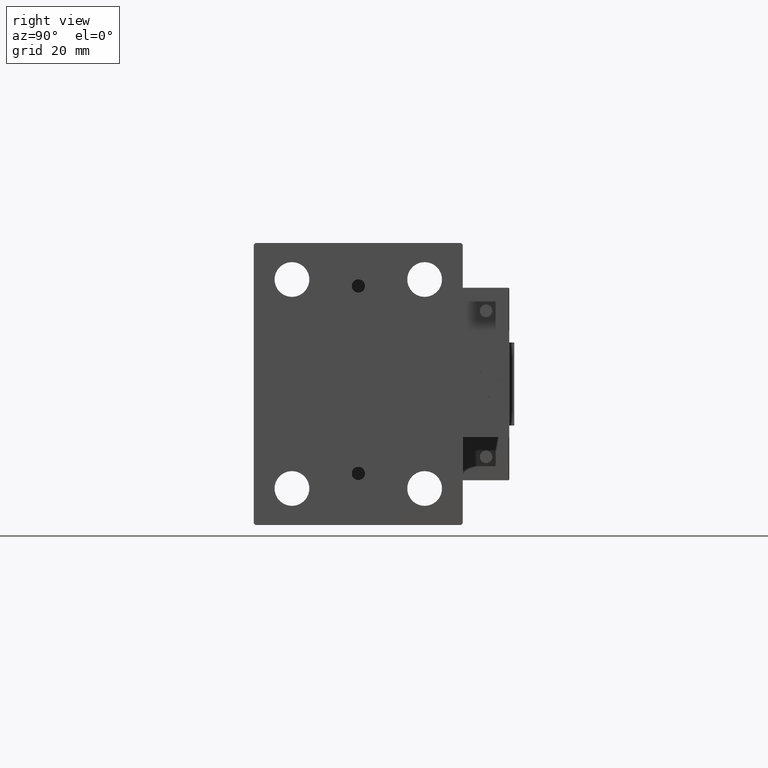
[diagram: clean part render]
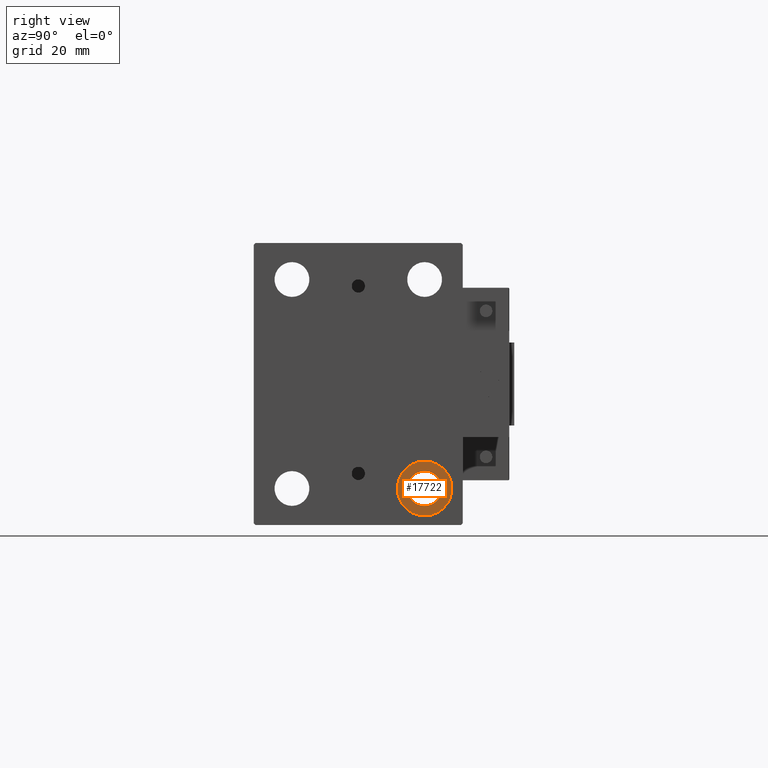
[diagram: same view with one face highlighted and labeled with its STEP entity id]
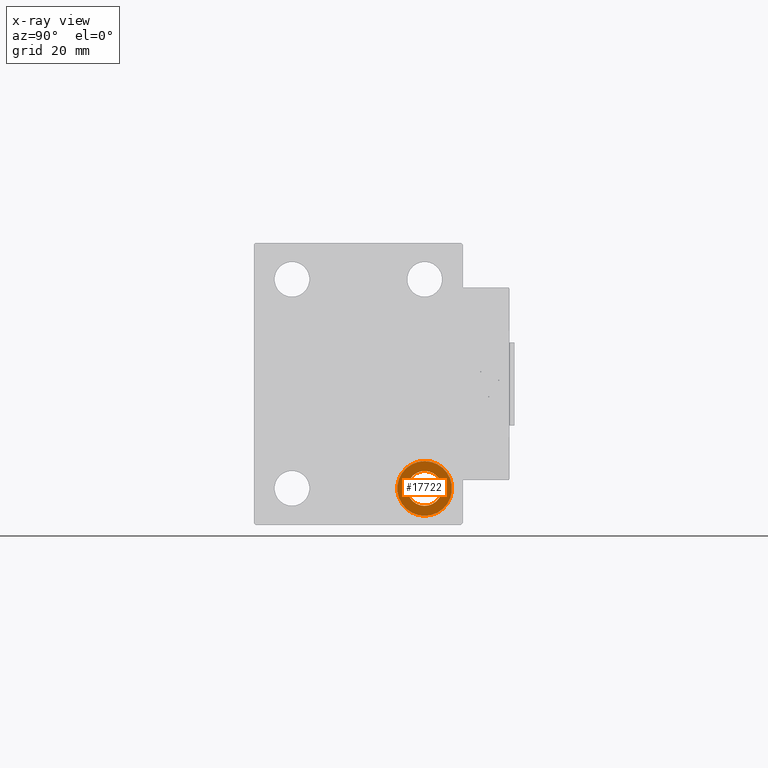
[diagram: x-ray of the same camera — body ghosted, the highlighted face saturated]
A machine part, right view. The second image highlights one B-rep face of the part: STEP entity #17722.
The next image is the same camera in x-ray: the body ghosted, the highlighted face saturated — about 0% of this face is hidden behind the body in this view.
In plain terms, the highlighted planar face has unit normal (1, 0, 0).
Its self-contained STEP definition (entity closure, byte-faithful):
#1029 = DIRECTION ( 'NONE',  ( 0.000000000000000000, 0.000000000000000000, 1.000000000000000000 ) ) ;
#1551 = VERTEX_POINT ( 'NONE', #46965 ) ;
#1729 = CIRCLE ( 'NONE', #23578, 5.249999999999997335 ) ;
#3099 = PLANE ( 'NONE',  #27217 ) ;
#3639 = EDGE_LOOP ( 'NONE', ( #44827, #24272 ) ) ;
#3786 = CARTESIAN_POINT ( 'NONE',  ( 102.0000000000000142, 19.99999999999999645, -31.49999999999999289 ) ) ;
#4020 = AXIS2_PLACEMENT_3D ( 'NONE', #4570, #35735, #1029 ) ;
#4570 = CARTESIAN_POINT ( 'NONE',  ( 102.0000000000000142, 19.99999999999999645, -31.49999999999999289 ) ) ;
#6814 = CARTESIAN_POINT ( 'NONE',  ( 102.0000000000000142, 19.99999999999999645, -26.24999999999999289 ) ) ;
#9933 = EDGE_CURVE ( 'NONE', #9959, #1551, #45211, .T. ) ;
#9959 = VERTEX_POINT ( 'NONE', #6814 ) ;
#13523 = DIRECTION ( 'NONE',  ( 0.000000000000000000, 0.000000000000000000, -1.000000000000000000 ) ) ;
#15187 = CIRCLE ( 'NONE', #32973, 8.250000000000000000 ) ;
#16321 = EDGE_CURVE ( 'NONE', #31235, #50025, #15187, .T. ) ;
#17722 = ADVANCED_FACE ( 'NONE', ( #19285, #31203 ), #3099, .T. ) ;
#18703 = ORIENTED_EDGE ( 'NONE', *, *, #9933, .T. ) ;
#19285 = FACE_OUTER_BOUND ( 'NONE', #3639, .T. ) ;
#20938 = AXIS2_PLACEMENT_3D ( 'NONE', #43077, #35470, #27869 ) ;
#20999 = CARTESIAN_POINT ( 'NONE',  ( 102.0000000000000142, 19.99999999999999645, -23.24999999999999289 ) ) ;
#21888 = DIRECTION ( 'NONE',  ( -1.000000000000000000, -0.000000000000000000, -0.000000000000000000 ) ) ;
#22796 = DIRECTION ( 'NONE',  ( -1.000000000000000000, -0.000000000000000000, -0.000000000000000000 ) ) ;
#23578 = AXIS2_PLACEMENT_3D ( 'NONE', #48235, #21888, #13523 ) ;
#24272 = ORIENTED_EDGE ( 'NONE', *, *, #24756, .F. ) ;
#24756 = EDGE_CURVE ( 'NONE', #50025, #31235, #41247, .T. ) ;
#26649 = DIRECTION ( 'NONE',  ( 0.000000000000000000, 0.000000000000000000, 1.000000000000000000 ) ) ;
#27217 = AXIS2_PLACEMENT_3D ( 'NONE', #42095, #46150, #26649 ) ;
#27869 = DIRECTION ( 'NONE',  ( 0.000000000000000000, 0.000000000000000000, -1.000000000000000000 ) ) ;
#28470 = EDGE_LOOP ( 'NONE', ( #18703, #48148 ) ) ;
#31203 = FACE_BOUND ( 'NONE', #28470, .T. ) ;
#31235 = VERTEX_POINT ( 'NONE', #39278 ) ;
#32973 = AXIS2_PLACEMENT_3D ( 'NONE', #3786, #22796, #34943 ) ;
#34943 = DIRECTION ( 'NONE',  ( 0.000000000000000000, 0.000000000000000000, 1.000000000000000000 ) ) ;
#35470 = DIRECTION ( 'NONE',  ( -1.000000000000000000, -0.000000000000000000, -0.000000000000000000 ) ) ;
#35735 = DIRECTION ( 'NONE',  ( -1.000000000000000000, -0.000000000000000000, -0.000000000000000000 ) ) ;
#39278 = CARTESIAN_POINT ( 'NONE',  ( 102.0000000000000142, 19.99999999999999645, -39.74999999999999289 ) ) ;
#41247 = CIRCLE ( 'NONE', #4020, 8.250000000000000000 ) ;
#42095 = CARTESIAN_POINT ( 'NONE',  ( 102.0000000000000142, 19.99999999999999645, -31.49999999999999289 ) ) ;
#43077 = CARTESIAN_POINT ( 'NONE',  ( 102.0000000000000142, 19.99999999999999645, -31.49999999999999289 ) ) ;
#44827 = ORIENTED_EDGE ( 'NONE', *, *, #16321, .F. ) ;
#45211 = CIRCLE ( 'NONE', #20938, 5.249999999999997335 ) ;
#45756 = EDGE_CURVE ( 'NONE', #1551, #9959, #1729, .T. ) ;
#46150 = DIRECTION ( 'NONE',  ( 1.000000000000000000, 0.000000000000000000, -0.000000000000000000 ) ) ;
#46965 = CARTESIAN_POINT ( 'NONE',  ( 102.0000000000000142, 19.99999999999999645, -36.74999999999999289 ) ) ;
#48148 = ORIENTED_EDGE ( 'NONE', *, *, #45756, .T. ) ;
#48235 = CARTESIAN_POINT ( 'NONE',  ( 102.0000000000000142, 19.99999999999999645, -31.49999999999999289 ) ) ;
#50025 = VERTEX_POINT ( 'NONE', #20999 ) ;